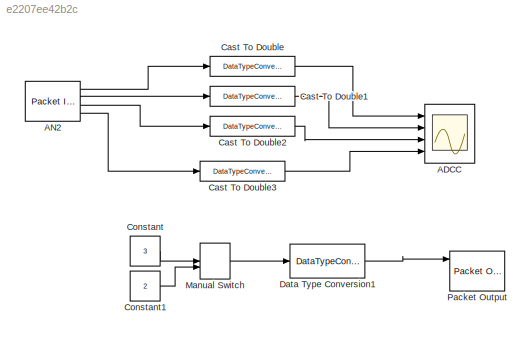
MODEL slx_e2207ee42b2c
KIND model
CONFIG AbsTol = auto
CONFIG EnableMultiTasking = on
CONFIG FixedStep = .005
CONFIG MaxStep = auto
CONFIG MinStep = auto
CONFIG RelTol = 1e-3
CONFIG SampleTimeConstraint = Unconstrained
CONFIG Solver = ode5
CONFIG SolverName = ode5
CONFIG StartTime = 0.0
CONFIG StopTime = inf
BLOCK [Scope] ADCC
  ExtModeUploadOption = log
  Floating = off
  NumInputPorts = 4
  Ports = [4]
  ScopeSpecificationString = Simulink.scopes.TimeScopeBlockCfg('CurrentConfiguration', extmgr.ConfigurationSet(extmgr.Configuration('Core','General UI',true),extmgr.Configuration('Core','Source UI',true),extmgr.Configuration('Sources','WiredSimulink',true,'DataLoggingVariableName','Test_Encoder_Values','DataLoggingSaveFormat','Structure','DataLoggingMaxPoints','50000','DataLoggingDecimation','1','DataLoggingDecimateData',true...<+3782ch>
BLOCK [Reference] AN2  REF=sldrtlib/Packet Input
  AttributesFormatString = Vector\nCAN Device [1]
  Ports = [0, 4]
  SourceBlock = sldrtlib/Packet Input
  SourceProductBaseCode = WT
  SourceType = Simulink Desktop Real-Time Packet Input
BLOCK [DataTypeConversion] Cast To Double
  OutDataTypeStr = double
  RndMeth = Floor
  SaturateOnIntegerOverflow = off
BLOCK [DataTypeConversion] Cast To Double1
  OutDataTypeStr = double
  RndMeth = Floor
  SaturateOnIntegerOverflow = off
BLOCK [DataTypeConversion] Cast To Double2
  OutDataTypeStr = double
  RndMeth = Floor
  SaturateOnIntegerOverflow = off
BLOCK [DataTypeConversion] Cast To Double3
  OutDataTypeStr = double
  RndMeth = Floor
  SaturateOnIntegerOverflow = off
BLOCK [Constant] Constant
  Value = 3
BLOCK [Constant] Constant1
  Value = 2
BLOCK [DataTypeConversion] Data Type Conversion1
  OutDataTypeStr = int16
  RndMeth = Floor
  SaturateOnIntegerOverflow = off
BLOCK [ManualSwitch] Manual Switch
  CurrentSetting = 0
BLOCK [Reference] Packet Output  REF=sldrtlib/Packet Output
  AttributesFormatString = Vector\nCAN Device [1]
  Ports = [4]
  SourceBlock = sldrtlib/Packet Output
  SourceProductBaseCode = WT
  SourceType = Simulink Desktop Real-Time Packet Output
LINE AN2:1 -> Cast To Double:1
LINE AN2:2 -> Cast To Double1:1
LINE AN2:3 -> Cast To Double2:1
LINE AN2:4 -> Cast To Double3:1
LINE Cast To Double1:1 -> ADCC:2
LINE Cast To Double2:1 -> ADCC:3
LINE Cast To Double3:1 -> ADCC:4
LINE Cast To Double:1 -> ADCC:1
LINE Constant1:1 -> Manual Switch:2
LINE Constant:1 -> Manual Switch:1
LINE Data Type Conversion1:1 -> Packet Output:1
LINE Manual Switch:1 -> Data Type Conversion1:1
